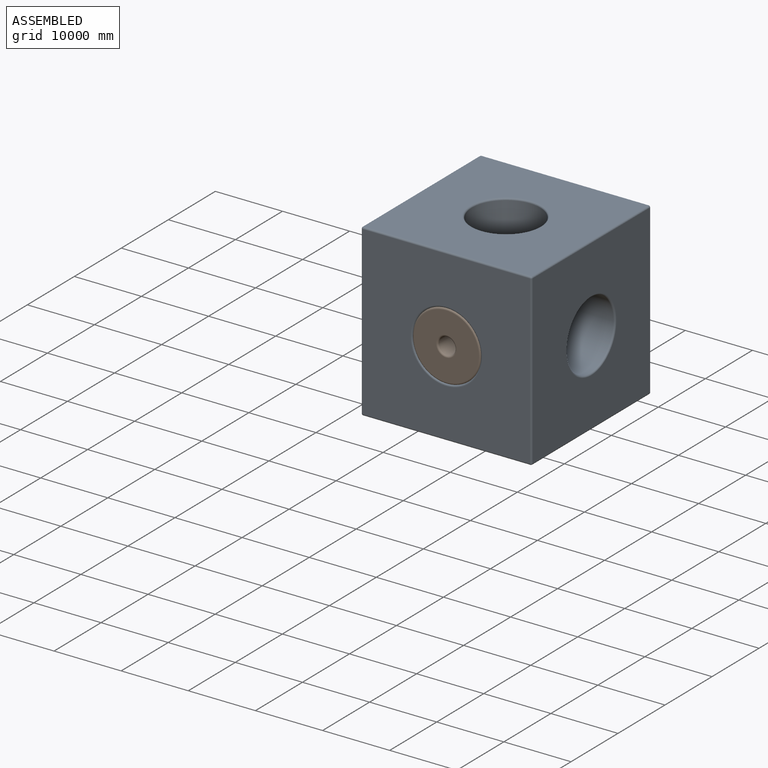
[diagram: assembled view]
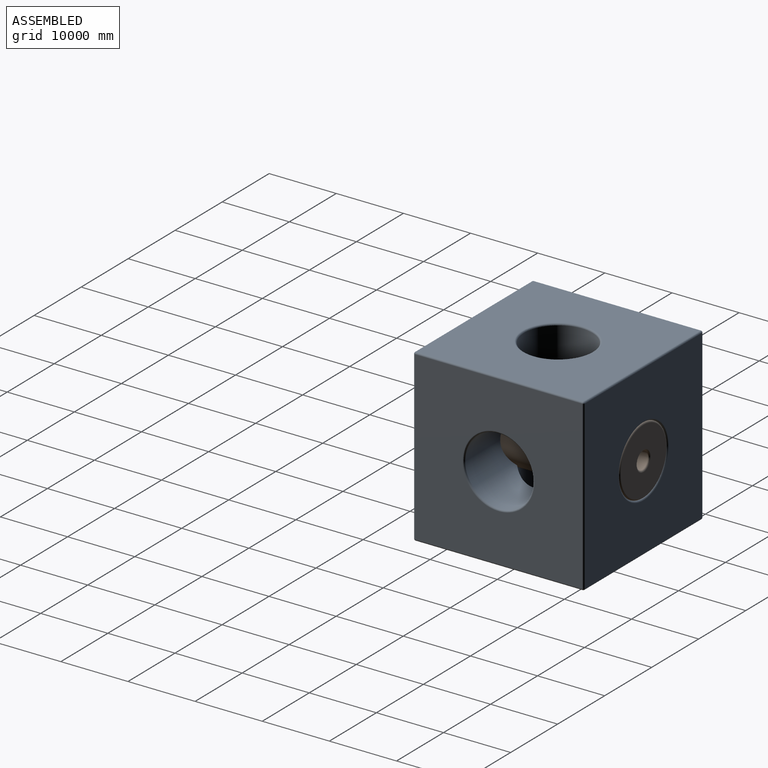
[diagram: assembled view, second angle]
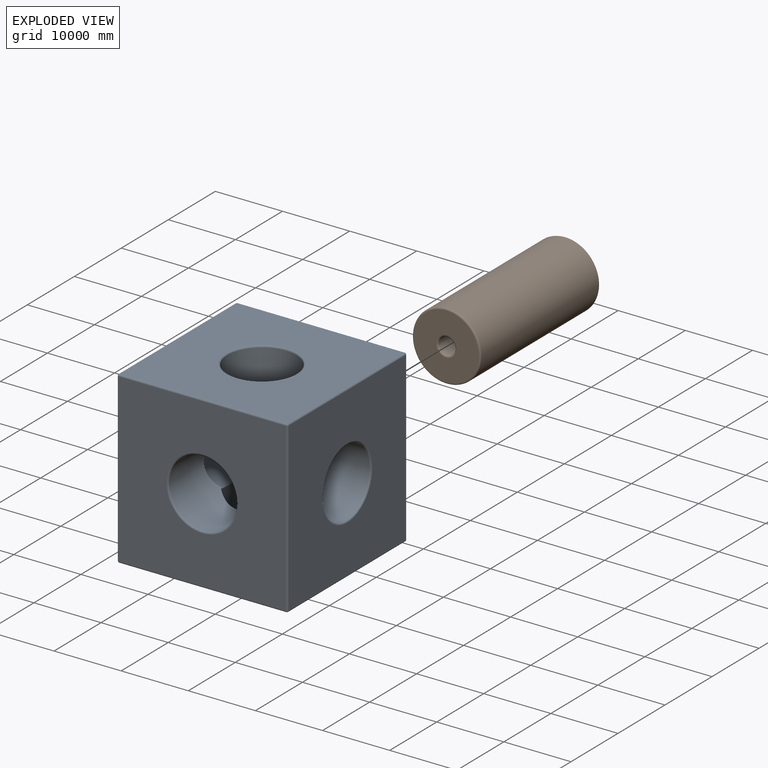
[diagram: exploded view]
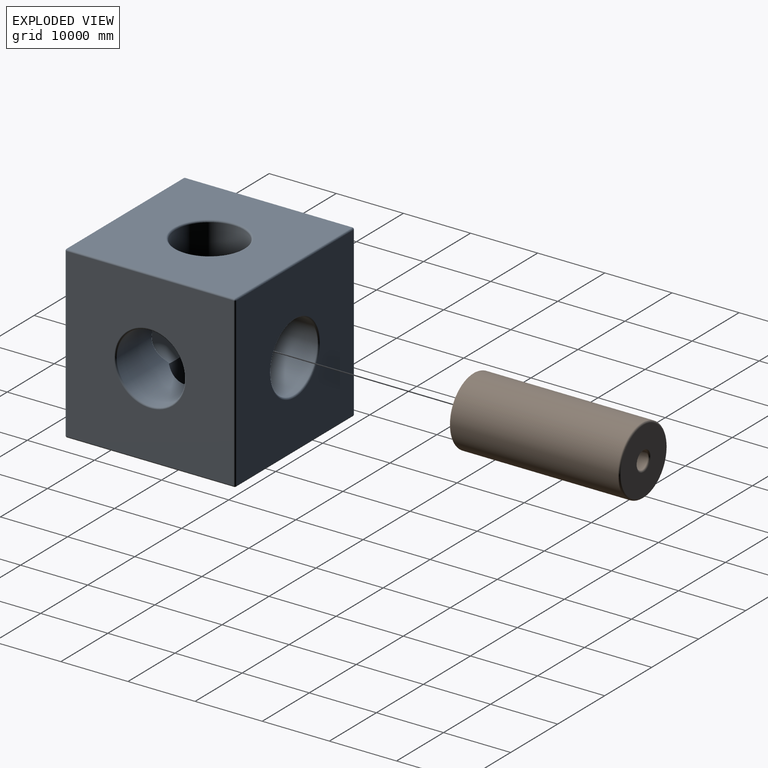
[diagram: exploded view, second angle]
ASSEMBLY  parts=2 mates=2
PART A: 38 faces, bbox 25400x25400x25400 mm
  f0: cylinder r=5092.7mm len=10185.4mm, axis (-1,0,0), area 251764821mm2, adj f1,f8,f32,f33,f37
  f1: cylinder r=5080mm len=10160mm, axis (0,-1,0), area 250819059mm2, adj f0,f9,f31,f32,f33
  f2: plane 24892x24892mm, normal (0,0,-1), area 529802323.7mm2, adj f19,f24,f27,f30,f34
  f3: plane 24892x24892mm, normal (1,0,0), area 529802323.7mm2, adj f16,f25,f26,f30,f36
  f4: plane 24892x24892mm, normal (0,0,1), area 529802323.7mm2, adj f11,f15,f16,f17,f35
  f5: plane 24892x24892mm, normal (-1,0,0), area 529802323.7mm2, adj f11,f14,f18,f19,f37
  f6: plane 24892x24892mm, normal (0,-1,0), area 530228464.7mm2, adj f10,f14,f15,f24,f25
  f7: plane 24892x24892mm, normal (0,1,0), area 530228464.7mm2, adj f9,f17,f18,f26,f27
  f8: cylinder r=5080mm len=10160mm, axis (0,-1,0), area 250822991.1mm2, adj f0,f10,f31,f32,f33
  f9: torus R=5334mm, axis (0,-1,0), area 12966329.4mm2, adj f1,f7
  f10: torus R=5334mm, axis (0,-1,0), area 12966329.4mm2, adj f6,f8
  f11: cylinder r=254mm len=24892mm, axis (0,-1,0), area 9931466.6mm2, adj f4,f5,f12,f13
  f12: sphere r=254mm, area 101341.5mm2, adj f11,f14,f15
  f13: sphere r=254mm, area 101341.5mm2, adj f11,f17,f18
  f14: cylinder r=254mm len=24892mm, axis (0,0,1), area 9931466.6mm2, adj f5,f6,f12,f20
  f15: cylinder r=254mm len=24892mm, axis (1,0,0), area 9931466.6mm2, adj f4,f6,f12,f21
  f16: cylinder r=254mm len=24892mm, axis (0,1,0), area 9931466.6mm2, adj f3,f4,f21,f22
  f17: cylinder r=254mm len=24892mm, axis (-1,0,0), area 9931466.6mm2, adj f4,f7,f13,f22
  f18: cylinder r=254mm len=24892mm, axis (0,0,-1), area 9931466.6mm2, adj f5,f7,f13,f23
  f19: cylinder r=254mm len=24892mm, axis (0,1,0), area 9931466.6mm2, adj f2,f5,f20,f23
  f20: sphere r=254mm, area 101341.5mm2, adj f14,f19,f24
  f21: sphere r=254mm, area 101341.5mm2, adj f15,f16,f25
  f22: sphere r=254mm, area 101341.5mm2, adj f16,f17,f26
  f23: sphere r=254mm, area 101341.5mm2, adj f18,f19,f27
  f24: cylinder r=254mm len=24892mm, axis (-1,0,0), area 9931466.6mm2, adj f2,f6,f20,f28
  f25: cylinder r=254mm len=24892mm, axis (0,0,-1), area 9931466.6mm2, adj f3,f6,f21,f28
  f26: cylinder r=254mm len=24892mm, axis (0,0,1), area 9931466.6mm2, adj f3,f7,f22,f29
  f27: cylinder r=254mm len=24892mm, axis (1,0,0), area 9931466.6mm2, adj f2,f7,f23,f29
  f28: sphere r=254mm, area 101341.5mm2, adj f24,f25,f30
  f29: sphere r=254mm, area 101341.5mm2, adj f26,f27,f30
  f30: cylinder r=254mm len=24892mm, axis (0,-1,0), area 9931466.6mm2, adj f2,f3,f28,f29
  f31: cylinder r=5092.7mm len=10185.4mm, axis (-1,0,0), area 251767544.3mm2, adj f1,f8,f32,f33,f36
  f32: cylinder r=5092.7mm len=10185.4mm, axis (0,0,1), area 251764811.3mm2, adj f0,f1,f8,f31,f35
  f33: cylinder r=5092.7mm len=10185.4mm, axis (0,0,1), area 251765622.4mm2, adj f0,f1,f8,f31,f34
  f34: torus R=5346.7mm, axis (0,0,-1), area 12998166.7mm2, adj f2,f33
  f35: torus R=5346.7mm, axis (0,0,-1), area 12998166.7mm2, adj f4,f32
  f36: torus R=5346.7mm, axis (-1,0,0), area 12998166.7mm2, adj f3,f31
  f37: torus R=5346.7mm, axis (-1,0,0), area 12998166.7mm2, adj f0,f5
PART B: 8 faces, bbox 10997.1x25400x10997.1 mm
  f0: cylinder r=5080mm len=24892mm, axis (0,1,0), area 794517327.2mm2, adj f3,f4
  f1: plane 9652x9652mm, normal (0,-1,0), area 65871972.3mm2, adj f4,f6
  f2: plane 9652x9652mm, normal (0,1,0), area 65871972.3mm2, adj f3,f7
  f3: torus R=4826mm, axis (0,-1,0), area 12503566.5mm2, adj f0,f2
  f4: torus R=4826mm, axis (0,-1,0), area 12503566.5mm2, adj f0,f1
  f5: cylinder r=1270mm len=24892mm, axis (0,-1,0), area 198629331.8mm2, adj f6,f7
  f6: torus R=1524mm, axis (0,-1,0), area 3415118.4mm2, adj f1,f5
  f7: torus R=1524mm, axis (0,-1,0), area 3415118.4mm2, adj f2,f5
PLACE A t=(-24798.48,-11274.03,4565.08)mm
PLACE B rot(axis=(0,1,0),0deg) t=(-24798.48,1425.97,4565.08)mm
MATE cylindrical B.f0 <-> A.f1  axis (0,1,0) through (-24798.48,1171.97,4565.08)mm
MATE planar B.f0 <-> A.f1  axis (0,1,0) through (-24798.48,1425.97,4565.08)mm
